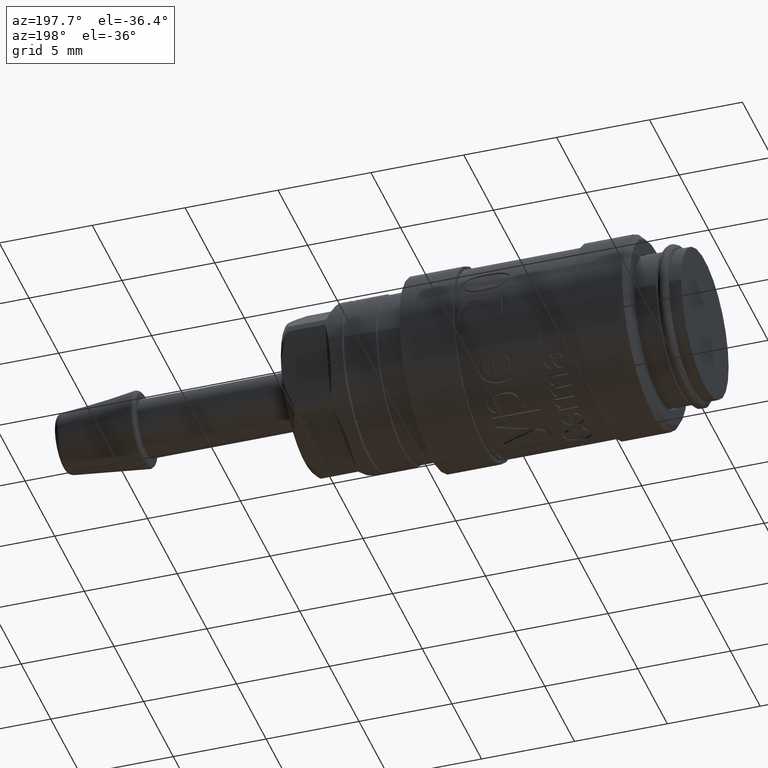
[diagram: clean part render]
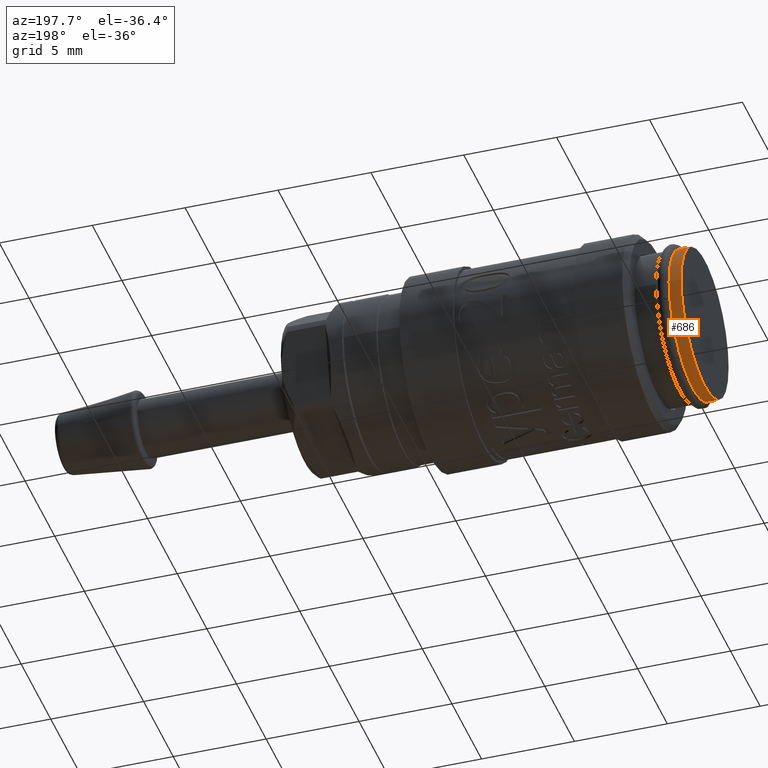
[diagram: same view with one face highlighted and labeled with its STEP entity id]
A machine part, auxiliary view. The second image highlights one B-rep face of the part: STEP entity #686.
In plain terms, the highlighted cylindrical surface (bore or boss wall) has radius 4 mm, axis along (1, 0, 0).
Its self-contained STEP definition (entity closure, byte-faithful):
#225=CARTESIAN_POINT('',(0.650000000002508,-3.994996871020666,-0.200000001337731));
#226=VERTEX_POINT('',#225);
#257=CARTESIAN_POINT('',(0.650000000002508,-3.994996871154606,0.199999998662269));
#258=VERTEX_POINT('',#257);
#259=CARTESIAN_POINT('',(0.649999999999999,0.0,0.0));
#260=DIRECTION('',(1.0,0.0,0.0));
#261=DIRECTION('',(0.0,1.0,0.0));
#262=AXIS2_PLACEMENT_3D('',#259,#260,#261);
#263=CIRCLE('',#262,4.0);
#264=EDGE_CURVE('',#226,#258,#263,.T.);
#653=CARTESIAN_POINT('',(0.649999999999999,0.0,0.0));
#654=DIRECTION('',(1.0,0.0,0.0));
#655=DIRECTION('',(0.0,1.0,0.0));
#656=AXIS2_PLACEMENT_3D('',#653,#654,#655);
#657=CIRCLE('',#656,4.0);
#658=EDGE_CURVE('',#258,#226,#657,.T.);
#666=CARTESIAN_POINT('',(0.325,0.0,0.0));
#667=DIRECTION('',(1.0,0.0,0.0));
#668=DIRECTION('',(0.0,1.0,0.0));
#669=AXIS2_PLACEMENT_3D('',#666,#667,#668);
#670=CYLINDRICAL_SURFACE('',#669,4.0);
#671=ORIENTED_EDGE('',*,*,#264,.F.);
#672=ORIENTED_EDGE('',*,*,#658,.F.);
#673=EDGE_LOOP('',(#671,#672));
#674=FACE_OUTER_BOUND('',#673,.T.);
#675=CARTESIAN_POINT('',(-4.857226E-016,4.0,0.0));
#676=VERTEX_POINT('',#675);
#677=CARTESIAN_POINT('',(0.0,0.0,0.0));
#678=DIRECTION('',(1.0,0.0,0.0));
#679=DIRECTION('',(0.0,1.0,0.0));
#680=AXIS2_PLACEMENT_3D('',#677,#678,#679);
#681=CIRCLE('',#680,4.0);
#682=EDGE_CURVE('',#676,#676,#681,.T.);
#683=ORIENTED_EDGE('',*,*,#682,.T.);
#684=EDGE_LOOP('',(#683));
#685=FACE_BOUND('',#684,.T.);
#686=ADVANCED_FACE('',(#674,#685),#670,.T.);